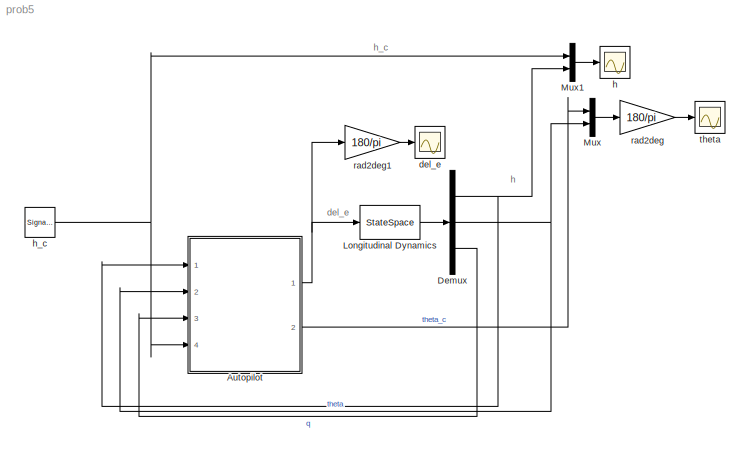
MODEL prob5
KIND model
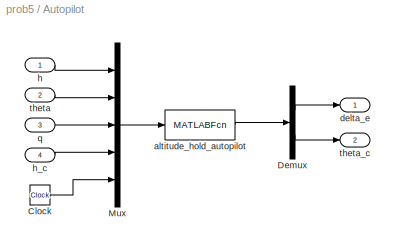
BLOCK [SubSystem] Autopilot
  Ports = [4, 2]
  RequestExecContextInheritance = off
  SID = 46
  Variant = off
BLOCK [Clock] Autopilot/Clock
  SID = 56
BLOCK [Demux] Autopilot/Demux
  DisplayOption = bar
  Outputs = 2
  Ports = [1, 2]
  SID = 59
BLOCK [Mux] Autopilot/Mux
  DisplayOption = bar
  Inputs = 5
  Ports = [5, 1]
  SID = 49
BLOCK [MATLABFcn] Autopilot/altitude_hold_autopilot
  MATLABFcn = altitude_hold_autopilot(u,P)
  OutputDimensions = 2
  Ports = [1, 1]
  SID = 45
BLOCK [Outport] Autopilot/delta_e
  IconDisplay = Port number
  SID = 60
BLOCK [Inport] Autopilot/h
  IconDisplay = Port number
  SID = 50
BLOCK [Inport] Autopilot/h_c
  IconDisplay = Port number
  Port = 4
  SID = 53
BLOCK [Inport] Autopilot/q
  IconDisplay = Port number
  Port = 3
  SID = 52
BLOCK [Inport] Autopilot/theta
  IconDisplay = Port number
  Port = 2
  SID = 51
BLOCK [Outport] Autopilot/theta_c
  IconDisplay = Port number
  Port = 2
  SID = 61
BLOCK [Demux] Demux
  DisplayOption = bar
  Outputs = 3
  Ports = [1, 3]
  SID = 3
BLOCK [StateSpace] Longitudinal Dynamics
  A = [-0.00643 0.0263 0 -32.2 0; -0.0941 -0.624 820 0 0; -0.000222 -0.00153 -0.668 0 0; 0 0 1 0 0; 0 -1 0 830 0]
  B = [0; -32.7; -2.08; 0; 0]
  C = [0 0 0 0 1; 0 0 0 1 0; 0 0 1 0 0]
  D = [0; 0; 0]
  Ports = [1, 1]
  SID = 1
  X0 = 0
BLOCK [Mux] Mux
  DisplayOption = bar
  Inputs = 2
  Ports = [2, 1]
  SID = 5
BLOCK [Mux] Mux1
  DisplayOption = bar
  Inputs = 2
  Ports = [2, 1]
  SID = 14
BLOCK [Scope] del_e
  Ports = [1]
  SID = 40
  ScopeSpecificationString = Simulink.scopes.TimeScopeBlockCfg('CurrentConfiguration', extmgr.ConfigurationSet(extmgr.Configuration('Core','General UI',true),extmgr.Configuration('Core','Source UI',true),extmgr.Configuration('Sources','WiredSimulink',true,'DataLoggingVariableName','ScopeData1','DataLoggingSaveFormat','StructureWithTime','DataLoggingLimitDataPoints',true,'DataLoggingDecimation','1','DataLoggingDecimateData',tr...<+1805ch>
BLOCK [Scope] h
  Ports = [1]
  SID = 19
  ScopeSpecificationString = Simulink.scopes.TimeScopeBlockCfg('CurrentConfiguration', extmgr.ConfigurationSet(extmgr.Configuration('Core','General UI',true),extmgr.Configuration('Core','Source UI',true),extmgr.Configuration('Sources','WiredSimulink',true,'DataLoggingVariableName','ScopeData3','DataLoggingSaveFormat','StructureWithTime','DataLoggingLimitDataPoints',true,'DataLoggingDecimation','1','DataLoggingDecimateData',tr...<+1816ch>
BLOCK [SignalGenerator] h_c
  Amplitude = 100
  Frequency = .0125
  Ports = [0, 1]
  SID = 44
  WaveForm = square
BLOCK [Gain] rad2deg
  Gain = 180/pi
  OutDataTypeStr = Inherit: Inherit via internal rule
  ParamDataTypeStr = Inherit: Inherit via internal rule
  SID = 6
  SaturateOnIntegerOverflow = off
BLOCK [Gain] rad2deg1
  Gain = 180/pi
  OutDataTypeStr = Inherit: Inherit via internal rule
  ParamDataTypeStr = Inherit: Inherit via internal rule
  SID = 41
  SaturateOnIntegerOverflow = off
BLOCK [Scope] theta
  Ports = [1]
  SID = 7
  ScopeSpecificationString = Simulink.scopes.TimeScopeBlockCfg('CurrentConfiguration', extmgr.ConfigurationSet(extmgr.Configuration('Core','General UI',true),extmgr.Configuration('Core','Source UI',true),extmgr.Configuration('Sources','WiredSimulink',true,'DataLoggingSaveFormat','StructureWithTime','DataLoggingLimitDataPoints',true,'DataLoggingDecimation','1','DataLoggingDecimateData',true),extmgr.Configuration('Visuals','Tim...<+1772ch>
ANNOTATION (root): del_e
ANNOTATION (root): h
ANNOTATION (root): h_c
LINE Autopilot/Clock:1 -> Autopilot/Mux:5
LINE Autopilot/Demux:1 -> Autopilot/delta_e:1
LINE Autopilot/Demux:2 -> Autopilot/theta_c:1
LINE Autopilot/Mux:1 -> Autopilot/altitude_hold_autopilot:1
LINE Autopilot/altitude_hold_autopilot:1 -> Autopilot/Demux:1
LINE Autopilot/h:1 -> Autopilot/Mux:1
LINE Autopilot/h_c:1 -> Autopilot/Mux:4
LINE Autopilot/q:1 -> Autopilot/Mux:3
LINE Autopilot/theta:1 -> Autopilot/Mux:2
NET Autopilot:1 -> Longitudinal Dynamics:1, rad2deg1:1
LINE Autopilot:2 -> Mux:1
NET Demux:1 -> Autopilot:1, Mux1:2
NET Demux:2 -> Autopilot:2, Mux:2
LINE Demux:3 -> Autopilot:3
LINE Longitudinal Dynamics:1 -> Demux:1
LINE Mux1:1 -> h:1
LINE Mux:1 -> rad2deg:1
NET h_c:1 -> Autopilot:4, Mux1:1
LINE rad2deg1:1 -> del_e:1
LINE rad2deg:1 -> theta:1
note: NET lines group one-source signal fan-out (src -> all destinations, sorted); 1:1 wires keep LINE
